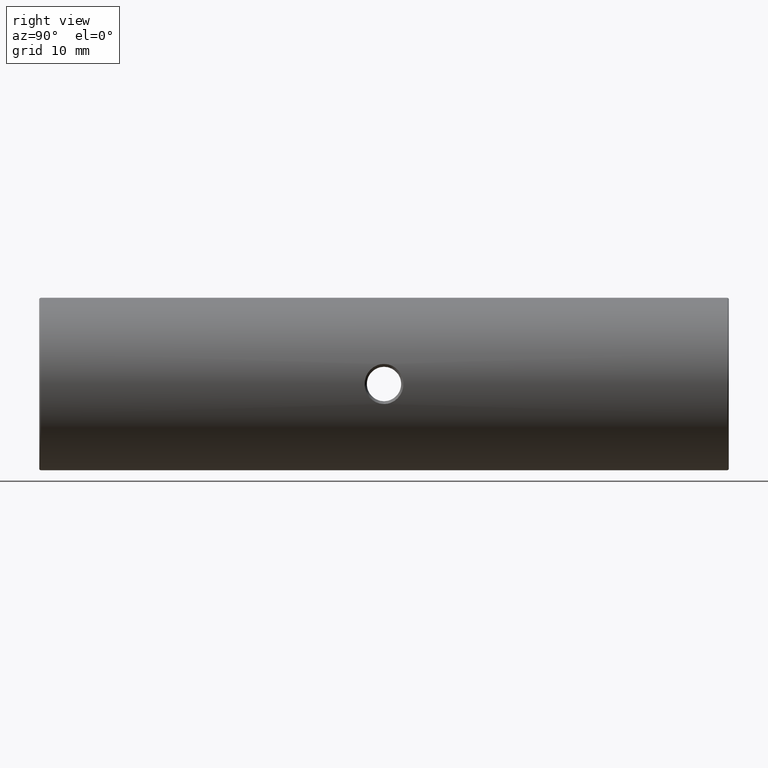
[diagram: clean part render]
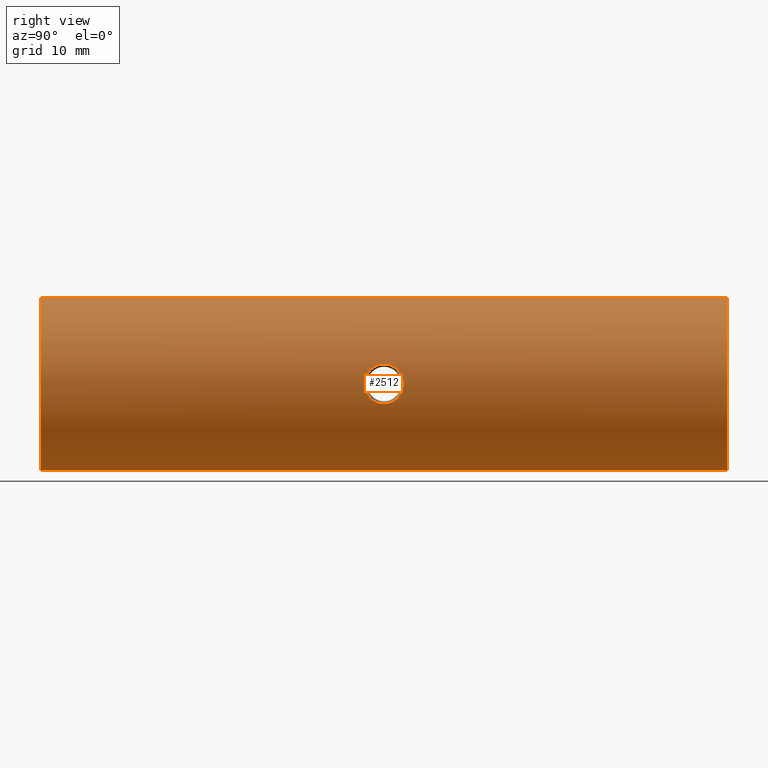
[diagram: same view with one face highlighted and labeled with its STEP entity id]
A machine part, right view. The second image highlights one B-rep face of the part: STEP entity #2512.
In plain terms, the highlighted cylindrical surface (partial cylindrical patch) has radius 12.5 mm, axis along (-0, -1, -0).
Its self-contained STEP definition (entity closure, byte-faithful):
#49 = CARTESIAN_POINT ( 'NONE',  ( -10.00964959995887682, 4.191281611658438599, 49.61735547875872498 ) ) ;
#96 = CARTESIAN_POINT ( 'NONE',  ( -10.26514075146263494, -0.02094479335838059231, 52.54036784948615235 ) ) ;
#113 = CARTESIAN_POINT ( 'NONE',  ( -10.34401387725316113, 1.031674240332181025, 52.89084654493490945 ) ) ;
#116 = DIRECTION ( 'NONE',  ( -0.0000000000000000000, -1.000000000000000000, -0.0000000000000000000 ) ) ;
#130 = CARTESIAN_POINT ( 'NONE',  ( -10.31357678706534742, 0.4914312575570669028, 52.76042022121074382 ) ) ;
#147 = CARTESIAN_POINT ( 'NONE',  ( -10.00520407681040602, -1.413074357631360023, 50.09552809953441255 ) ) ;
#150 = CARTESIAN_POINT ( 'NONE',  ( -22.50520183104453409, -48.35174781523060972, 37.50000000000000711 ) ) ;
#203 = VECTOR ( 'NONE', #954, 1000.000000000000000 ) ;
#262 = EDGE_CURVE ( 'NONE', #3152, #2420, #2954, .T. ) ;
#291 = DIRECTION ( 'NONE',  ( 0.0000000000000000000, 0.0000000000000000000, 1.000000000000000000 ) ) ;
#348 = CARTESIAN_POINT ( 'NONE',  ( -10.08961095989025836, -1.040983855335633423, 48.54098388029364486 ) ) ;
#352 = CARTESIAN_POINT ( 'NONE',  ( -10.08950009458220798, 3.837971256541905962, 51.45792308337465926 ) ) ;
#368 = CARTESIAN_POINT ( 'NONE',  ( -10.22067027171157427, -0.3289239818923034298, 52.32705980209998131 ) ) ;
#373 = CARTESIAN_POINT ( 'NONE',  ( -10.22069015972486383, 3.112715133718002569, 47.68647738584110130 ) ) ;
#385 = VERTEX_POINT ( 'NONE', #985 ) ;
#386 = CARTESIAN_POINT ( 'NONE',  ( -10.01393814977556040, -1.376641194413138480, 50.47655221270638748 ) ) ;
#472 = CARTESIAN_POINT ( 'NONE',  ( -22.50520183104453409, 51.14825218476939028, 50.00000000000000000 ) ) ;
#531 = EDGE_LOOP ( 'NONE', ( #1806, #2291, #2093, #1914 ) ) ;
#587 = B_SPLINE_CURVE_WITH_KNOTS ( 'NONE', 3,
 ( #1964, #617, #2017, #2227, #3079, #2731, #2538, #3290, #3031, #348, #1718, #2786, #915, #3271, #1733, #147, #2263, #1208, #386, #3016, #634, #2767, #1433, #2522, #1155, #368, #96, #130, #1400, #113, #1416, #1171 ),
 .UNSPECIFIED., .F., .F.,
 ( 4, 2, 2, 2, 2, 2, 2, 2, 2, 2, 2, 2, 2, 2, 2, 4 ),
 ( 0.0000000000000000000, 0.06249999999999865385, 0.09374999999999797384, 0.1249999999999973077, 0.1562499999999966416, 0.1874999999999959477, 0.2187499999999952816, 0.2499999999999946154, 0.2656249999999948375, 0.2812499999999950595, 0.3124999999999955591, 0.3437499999999960587, 0.3749999999999965028, 0.4374999999999982792, 0.4687499999999991673, 0.5000000000000000000 ),
 .UNSPECIFIED. ) ;
#604 = CARTESIAN_POINT ( 'NONE',  ( -10.34847189391649458, 1.398252184769389173, 47.09071877678783835 ) ) ;
#617 = CARTESIAN_POINT ( 'NONE',  ( -10.34845463298328738, 1.026200419306731337, 47.09079090336737750 ) ) ;
#621 = CARTESIAN_POINT ( 'NONE',  ( -10.19821154778436956, 3.255369150858302252, 47.80765360765527561 ) ) ;
#630 = CYLINDRICAL_SURFACE ( 'NONE', #3325, 12.49999999999999645 ) ;
#634 = CARTESIAN_POINT ( 'NONE',  ( -10.03926934904702328, -1.268979855296346493, 50.93906143858718849 ) ) ;
#652 = EDGE_CURVE ( 'NONE', #2219, #3353, #1818, .T. ) ;
#658 = CARTESIAN_POINT ( 'NONE',  ( -10.19795443142407976, 3.257006472510281192, 52.19097686579141993 ) ) ;
#849 = CARTESIAN_POINT ( 'NONE',  ( -10.13051884921005907, 3.634910052899539501, 51.77268452493007089 ) ) ;
#853 = EDGE_CURVE ( 'NONE', #2420, #3152, #587, .T. ) ;
#869 = CARTESIAN_POINT ( 'NONE',  ( -10.02677590330629442, 4.118849129136625820, 49.24228715506748699 ) ) ;
#902 = LINE ( 'NONE', #2003, #2278 ) ;
#915 = CARTESIAN_POINT ( 'NONE',  ( -10.02677036316136672, -1.322359924746542736, 49.24218911801308707 ) ) ;
#920 = CARTESIAN_POINT ( 'NONE',  ( -10.15294739806568280, 3.517539805018253585, 51.92107485664977418 ) ) ;
#954 = DIRECTION ( 'NONE',  ( -0.0000000000000000000, -1.000000000000000000, -0.0000000000000000000 ) ) ;
#985 = CARTESIAN_POINT ( 'NONE',  ( -22.50520183104453409, -48.35174781523060972, 62.50000000000000000 ) ) ;
#1005 = ORIENTED_EDGE ( 'NONE', *, *, #262, .T. ) ;
#1142 = CARTESIAN_POINT ( 'NONE',  ( -10.28138215996619387, 2.645685024799196317, 47.38584113131454245 ) ) ;
#1155 = CARTESIAN_POINT ( 'NONE',  ( -10.15310274899528942, -0.7201770142576157108, 51.92207674298856546 ) ) ;
#1171 = CARTESIAN_POINT ( 'NONE',  ( -10.34847154019206883, 1.401086072872696153, 52.90927974513799370 ) ) ;
#1208 = CARTESIAN_POINT ( 'NONE',  ( -10.01064372293458860, -1.390416779110422940, 50.38099164027958210 ) ) ;
#1212 = CARTESIAN_POINT ( 'NONE',  ( -22.50520183104453409, 51.39825218476939028, 37.50000000000000711 ) ) ;
#1316 = ORIENTED_EDGE ( 'NONE', *, *, #853, .T. ) ;
#1378 = DIRECTION ( 'NONE',  ( -0.0000000000000000000, -1.000000000000000000, -0.0000000000000000000 ) ) ;
#1385 = CARTESIAN_POINT ( 'NONE',  ( -10.03912386684493363, 4.066135811482851636, 50.93725250157556417 ) ) ;
#1400 = CARTESIAN_POINT ( 'NONE',  ( -10.32641410112885438, 0.6672506221453431419, 52.81577975407483905 ) ) ;
#1416 = CARTESIAN_POINT ( 'NONE',  ( -10.34850882696733088, 1.217554420249717717, 52.90943555183586255 ) ) ;
#1420 = CARTESIAN_POINT ( 'NONE',  ( -10.26240494945339066, 2.806784448294292300, 47.47501714755996005 ) ) ;
#1433 = CARTESIAN_POINT ( 'NONE',  ( -10.08992494498989245, -1.039449521860707604, 51.46152594154585103 ) ) ;
#1447 = CARTESIAN_POINT ( 'NONE',  ( -10.34847189391649458, 1.398252184769389173, 47.09071877678783835 ) ) ;
#1497 = EDGE_LOOP ( 'NONE', ( #1316, #1005 ) ) ;
#1540 = DIRECTION ( 'NONE',  ( -0.0000000000000000000, -1.000000000000000000, -0.0000000000000000000 ) ) ;
#1621 = CARTESIAN_POINT ( 'NONE',  ( -22.50520183104453409, -48.35174781523060972, 50.00000000000000000 ) ) ;
#1660 = CARTESIAN_POINT ( 'NONE',  ( -22.50520183104453409, 51.14825218476939028, 37.50000000000000711 ) ) ;
#1668 = CARTESIAN_POINT ( 'NONE',  ( -10.26171685816569656, 2.812244921843088719, 52.52163236101800692 ) ) ;
#1714 = FACE_BOUND ( 'NONE', #1497, .T. ) ;
#1718 = CARTESIAN_POINT ( 'NONE',  ( -10.07065230752212237, -1.128473363231522031, 48.71045361163168508 ) ) ;
#1722 = CARTESIAN_POINT ( 'NONE',  ( -10.01064152821887987, 4.186927187743311407, 50.38093568517158616 ) ) ;
#1733 = CARTESIAN_POINT ( 'NONE',  ( -10.00519734990737319, -1.413097615887292546, 49.80982674692149459 ) ) ;
#1806 = ORIENTED_EDGE ( 'NONE', *, *, #652, .T. ) ;
#1818 = CIRCLE ( 'NONE', #2104, 12.49999999999999645 ) ;
#1867 = EDGE_CURVE ( 'NONE', #385, #3369, #2159, .T. ) ;
#1913 = CARTESIAN_POINT ( 'NONE',  ( -10.00523732347766526, 4.209438793481273144, 49.80666152458070428 ) ) ;
#1914 = ORIENTED_EDGE ( 'NONE', *, *, #3434, .F. ) ;
#1932 = CARTESIAN_POINT ( 'NONE',  ( -10.32961809028129352, 2.135293394376623244, 47.16670927387672663 ) ) ;
#1952 = CARTESIAN_POINT ( 'NONE',  ( -10.00518440457558356, 4.209659017148185356, 50.09320650245469153 ) ) ;
#1964 = CARTESIAN_POINT ( 'NONE',  ( -10.34847189391649458, 1.398252184769389173, 47.09071877678783835 ) ) ;
#1968 = CARTESIAN_POINT ( 'NONE',  ( -10.34847154019206883, 1.401086072872696153, 52.90927974513799370 ) ) ;
#1985 = CARTESIAN_POINT ( 'NONE',  ( -10.00627509750672672, 4.205142563667195965, 50.18968306945501467 ) ) ;
#2003 = CARTESIAN_POINT ( 'NONE',  ( -22.50520183104453409, 51.39825218476939028, 62.50000000000000000 ) ) ;
#2017 = CARTESIAN_POINT ( 'NONE',  ( -10.32954370539410327, 0.6599845766525982427, 47.16701032394610849 ) ) ;
#2093 = ORIENTED_EDGE ( 'NONE', *, *, #1867, .T. ) ;
#2104 = AXIS2_PLACEMENT_3D ( 'NONE', #472, #1540, #2609 ) ;
#2159 = CIRCLE ( 'NONE', #2881, 12.49999999999999645 ) ;
#2171 = DIRECTION ( 'NONE',  ( 0.0000000000000000000, 1.000000000000000000, 0.0000000000000000000 ) ) ;
#2189 = CARTESIAN_POINT ( 'NONE',  ( -22.50520183104453409, 51.39825218476939028, 50.00000000000000000 ) ) ;
#2205 = DIRECTION ( 'NONE',  ( 0.0000000000000000000, 0.0000000000000000000, -1.000000000000000000 ) ) ;
#2219 = VERTEX_POINT ( 'NONE', #1660 ) ;
#2227 = CARTESIAN_POINT ( 'NONE',  ( -10.28120580034533837, 0.1491743862975606627, 47.38666087815094841 ) ) ;
#2248 = CARTESIAN_POINT ( 'NONE',  ( -10.34839696664154651, 1.768149378118655024, 52.90896813174224178 ) ) ;
#2263 = CARTESIAN_POINT ( 'NONE',  ( -10.00627837453286872, -1.408621410739452573, 50.18986673000135568 ) ) ;
#2278 = VECTOR ( 'NONE', #116, 1000.000000000000000 ) ;
#2291 = ORIENTED_EDGE ( 'NONE', *, *, #3007, .T. ) ;
#2420 = VERTEX_POINT ( 'NONE', #1447 ) ;
#2455 = CARTESIAN_POINT ( 'NONE',  ( -10.01384831664376485, 4.173523746012506308, 50.47415274408397323 ) ) ;
#2472 = CARTESIAN_POINT ( 'NONE',  ( -10.22016270265412352, 3.116156845115297447, 52.31070717728571395 ) ) ;
#2490 = CARTESIAN_POINT ( 'NONE',  ( -10.32931247818719989, 2.139314989469196959, 52.83196653074543292 ) ) ;
#2507 = CARTESIAN_POINT ( 'NONE',  ( -22.50520183104453409, 51.14825218476939028, 62.50000000000000000 ) ) ;
#2512 = ADVANCED_FACE ( 'NONE', ( #1714, #2519 ), #630, .T. ) ;
#2519 = FACE_OUTER_BOUND ( 'NONE', #531, .T. ) ;
#2522 = CARTESIAN_POINT ( 'NONE',  ( -10.13100719876846334, -0.8359003745247428618, 51.77608148398777388 ) ) ;
#2538 = CARTESIAN_POINT ( 'NONE',  ( -10.19775323581232307, -0.4616773628842719135, 47.81021797968168840 ) ) ;
#2609 = DIRECTION ( 'NONE',  ( 0.0000000000000000000, 0.0000000000000000000, 1.000000000000000000 ) ) ;
#2715 = CARTESIAN_POINT ( 'NONE',  ( -10.28116133935773391, 2.647623010360637519, 52.61312323641141120 ) ) ;
#2731 = CARTESIAN_POINT ( 'NONE',  ( -10.22044804821624098, -0.3177678143217524398, 47.68777784866584568 ) ) ;
#2767 = CARTESIAN_POINT ( 'NONE',  ( -10.07084455743867757, -1.127609090042493545, 51.29153715528713064 ) ) ;
#2771 = CARTESIAN_POINT ( 'NONE',  ( -10.02657681141778845, 4.119691500564644393, 50.75422238455544033 ) ) ;
#2786 = CARTESIAN_POINT ( 'NONE',  ( -10.03928546547296108, -1.268904155931877886, 49.06091485622431492 ) ) ;
#2789 = LINE ( 'NONE', #1212, #203 ) ;
#2790 = CARTESIAN_POINT ( 'NONE',  ( -10.03956905277292222, 4.064168843869349956, 49.05718252096293241 ) ) ;
#2881 = AXIS2_PLACEMENT_3D ( 'NONE', #1621, #2171, #291 ) ;
#2954 = B_SPLINE_CURVE_WITH_KNOTS ( 'NONE', 3,
 ( #1968, #2248, #2490, #2715, #1668, #2472, #658, #920, #849, #352, #3259, #1385, #2771, #2455, #1722, #1985, #1952, #1913, #49, #869, #2790, #3294, #3020, #621, #373, #1420, #1142, #1932, #3002, #604 ),
 .UNSPECIFIED., .F., .F.,
 ( 4, 2, 2, 2, 2, 2, 2, 2, 2, 2, 2, 2, 2, 2, 4 ),
 ( 0.5000000000000000000, 0.5624999999999982236, 0.5937499999999976685, 0.6249999999999971134, 0.6562499999999964473, 0.6874999999999957812, 0.7187499999999952260, 0.7343749999999948930, 0.7499999999999946709, 0.7812499999999951150, 0.8124999999999956701, 0.8749999999999966693, 0.9062499999999975575, 0.9374999999999985567, 1.000000000000000000 ),
 .UNSPECIFIED. ) ;
#3002 = CARTESIAN_POINT ( 'NONE',  ( -10.34848894705066336, 1.765824933951829712, 47.09064751851792607 ) ) ;
#3007 = EDGE_CURVE ( 'NONE', #3353, #385, #902, .T. ) ;
#3016 = CARTESIAN_POINT ( 'NONE',  ( -10.02675186171656208, -1.322443306122885964, 50.75721055769034962 ) ) ;
#3020 = CARTESIAN_POINT ( 'NONE',  ( -10.13120772189607877, 3.643678481381412926, 48.20895563094945402 ) ) ;
#3031 = CARTESIAN_POINT ( 'NONE',  ( -10.13104527353596573, -0.8357329462974467660, 48.22352196531448953 ) ) ;
#3079 = CARTESIAN_POINT ( 'NONE',  ( -10.26201457400352446, -0.01335821449705710921, 47.47692398630900357 ) ) ;
#3152 = VERTEX_POINT ( 'NONE', #3363 ) ;
#3259 = CARTESIAN_POINT ( 'NONE',  ( -10.07078360413760265, 3.924386101521293302, 51.29104044072105495 ) ) ;
#3271 = CARTESIAN_POINT ( 'NONE',  ( -10.00959453157194545, -1.395018423928538365, 49.61878162572887163 ) ) ;
#3290 = CARTESIAN_POINT ( 'NONE',  ( -10.15309026960084005, -0.7201977724897725697, 48.07808007595487254 ) ) ;
#3294 = CARTESIAN_POINT ( 'NONE',  ( -10.08673579313785140, 3.852910402445404614, 48.53189826260293671 ) ) ;
#3325 = AXIS2_PLACEMENT_3D ( 'NONE', #2189, #1378, #2205 ) ;
#3353 = VERTEX_POINT ( 'NONE', #2507 ) ;
#3363 = CARTESIAN_POINT ( 'NONE',  ( -10.34847154019206883, 1.401086072872696153, 52.90927974513799370 ) ) ;
#3369 = VERTEX_POINT ( 'NONE', #150 ) ;
#3434 = EDGE_CURVE ( 'NONE', #2219, #3369, #2789, .T. ) ;